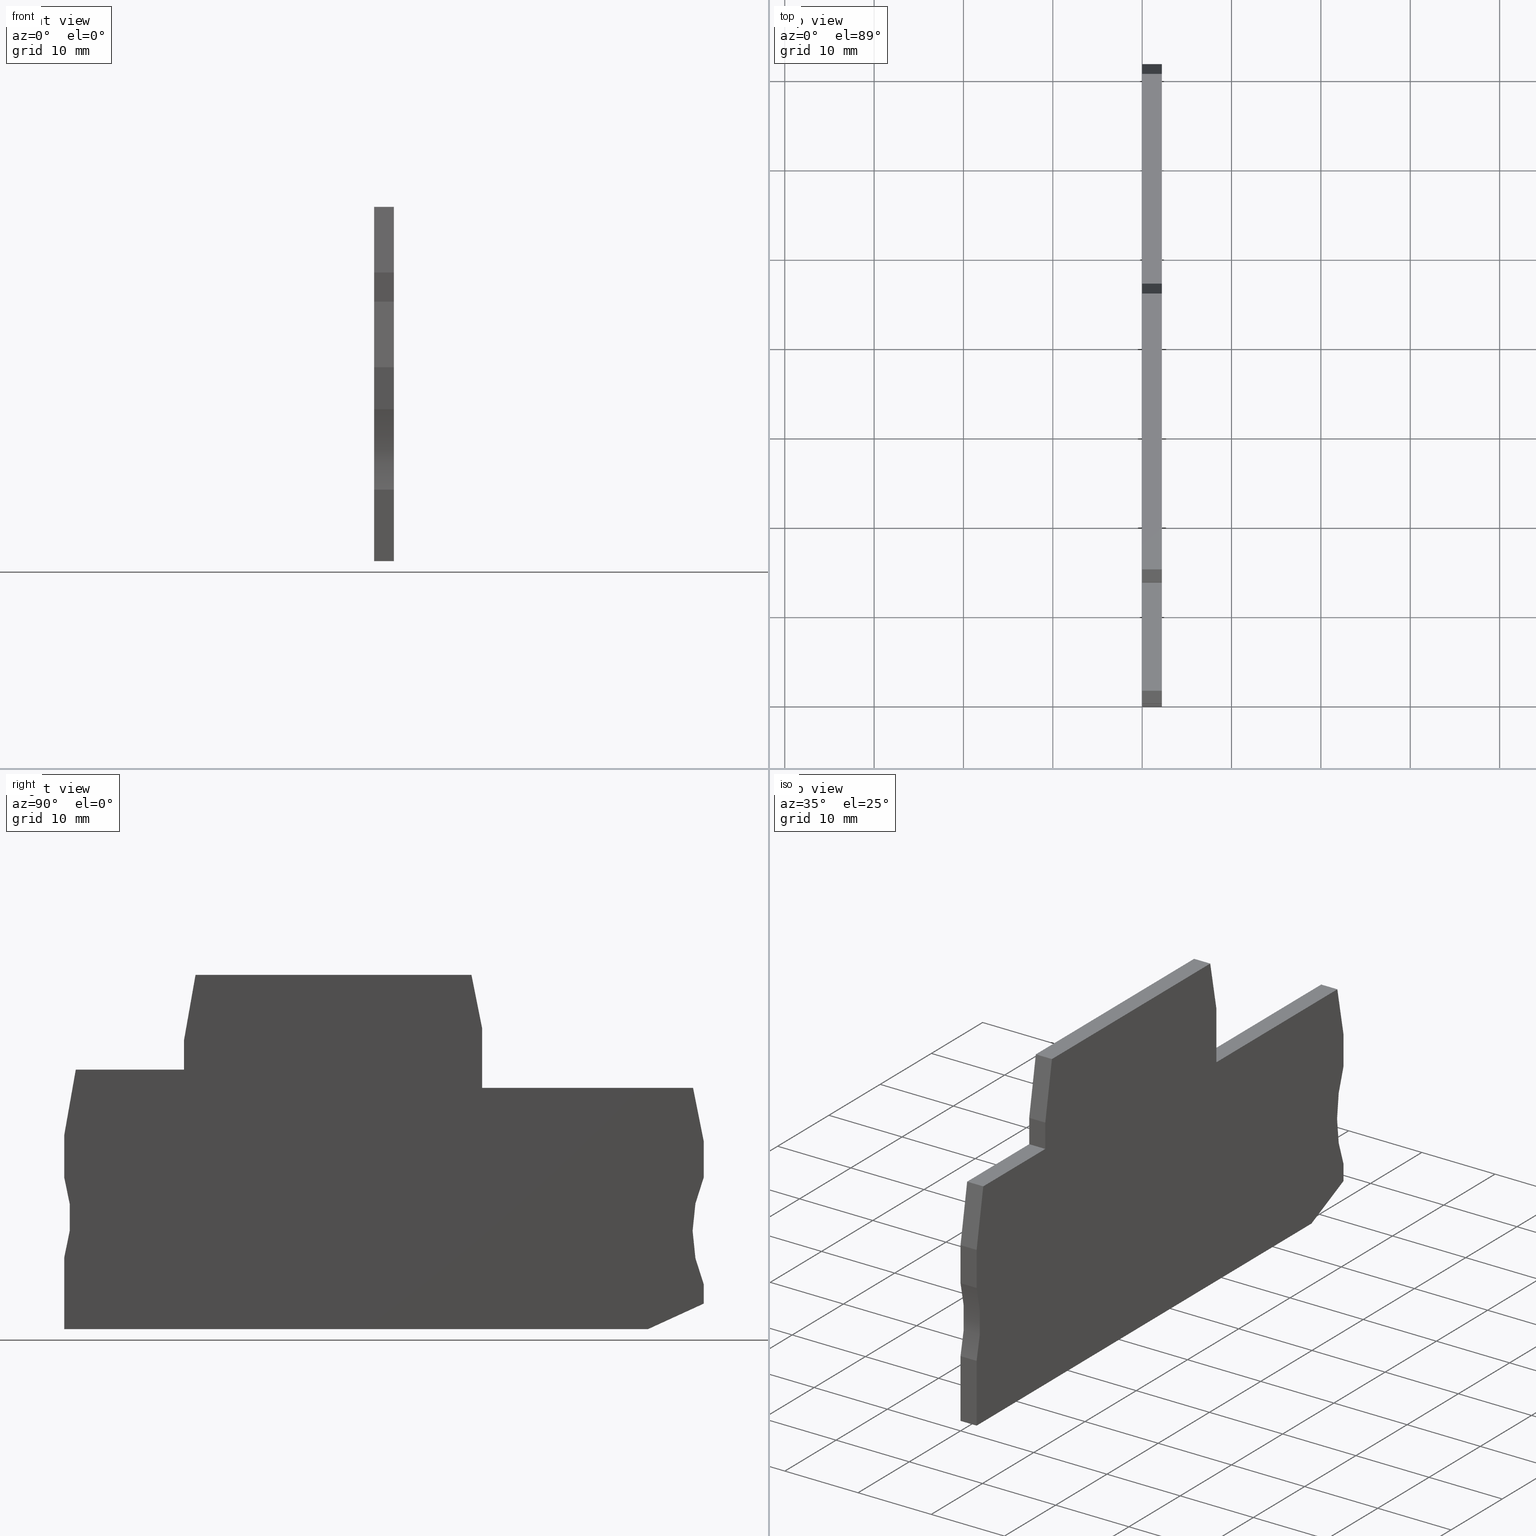
[diagram: canonical four-view strip — front | top / right | iso, engineering-drawing reading convention]
A machine part, canonical four-view strip (front | top / right | iso — engineering-drawing reading convention). The complete STEP part file that produces these views, byte-faithful:
ISO-10303-21;
HEADER;
FILE_DESCRIPTION(('Creo Elements/Direct Modeling STEP Export'),'2;1');
FILE_NAME(
'D:/temp/JobSpoolerServerData/JobServer Files/9b10378f-8272-4da4-959f-eb
54d220a2de/work/output/model.stp','2018-07-03T 8:57:46',(''),(''),
'Creo Elements/Direct Modeling STEP processor for AP214 (Solid Model)',
'Creo Elements/Direct Modeling 18.1I  14-Aug-2016 (C) Parametric Technol
ogy GmbH','');
FILE_SCHEMA(('AUTOMOTIVE_DESIGN { 1 0 10303 214 1 1 1 1 }'));
ENDSEC;
DATA;
#10=CARTESIAN_POINT('',(80.5866036945493,0.886529693613305,53.67));
#20=DIRECTION('',(0.,0.,-1.));
#30=DIRECTION('',(-1.,0.,0.));
#40=AXIS2_PLACEMENT_3D('',#10,#20,#30);
#50=PLANE('',#40);
#60=CARTESIAN_POINT('',(96.1109915311721,-11.94298,53.67));
#70=DIRECTION('',(0.196116135138246,-0.980580675690908,0.));
#80=VECTOR('',#70,1.);
#90=LINE('',#60,#80);
#100=CARTESIAN_POINT('',(93.4323955311731,1.44999999999059,53.67));
#110=VERTEX_POINT('',#100);
#120=CARTESIAN_POINT('',(94.6323955311728,-4.55000000000587,53.67));
#130=VERTEX_POINT('',#120);
#140=EDGE_CURVE('',#110,#130,#90,.T.);
#150=ORIENTED_EDGE('',*,*,#140,.T.);
#160=CARTESIAN_POINT('',(104.930098,1.44999999999058,53.67));
#170=DIRECTION('',(1.,0.,0.));
#180=VECTOR('',#170,1.);
#190=LINE('',#160,#180);
#200=CARTESIAN_POINT('',(62.5533991621023,1.44999999999059,53.67));
#210=VERTEX_POINT('',#200);
#220=EDGE_CURVE('',#210,#110,#190,.T.);
#230=ORIENTED_EDGE('',*,*,#220,.T.);
#240=CARTESIAN_POINT('',(60.1918554360151,-11.94298,53.67));
#250=DIRECTION('',(0.17364817766693,0.984807753012208,0.));
#260=VECTOR('',#250,1.);
#270=LINE('',#240,#260);
#280=CARTESIAN_POINT('',(61.2573958538972,-5.89999999999742,53.67));
#290=VERTEX_POINT('',#280);
#300=EDGE_CURVE('',#290,#210,#270,.T.);
#310=ORIENTED_EDGE('',*,*,#300,.T.);
#320=CARTESIAN_POINT('',(61.2573958538972,-11.94298,53.67));
#330=DIRECTION('',(0.,1.,0.));
#340=VECTOR('',#330,1.);
#350=LINE('',#320,#340);
#360=CARTESIAN_POINT('',(61.2573958538972,-9.15000000001019,53.67));
#370=VERTEX_POINT('',#360);
#380=EDGE_CURVE('',#370,#290,#350,.T.);
#390=ORIENTED_EDGE('',*,*,#380,.T.);
#400=CARTESIAN_POINT('',(104.930098,-9.15000000003588,53.67));
#410=DIRECTION('',(1.,-5.88205564955502E-13,0.));
#420=VECTOR('',#410,1.);
#430=LINE('',#400,#420);
#440=CARTESIAN_POINT('',(49.1533988533523,-9.15000000000308,53.67));
#450=VERTEX_POINT('',#440);
#460=EDGE_CURVE('',#450,#370,#430,.T.);
#470=ORIENTED_EDGE('',*,*,#460,.T.);
#480=CARTESIAN_POINT('',(48.6609211227738,-11.94298,53.67));
#490=DIRECTION('',(0.173648177666926,0.984807753012209,0.));
#500=VECTOR('',#490,1.);
#510=LINE('',#480,#500);
#520=CARTESIAN_POINT('',(47.8573958538972,-16.4999982489833,53.67));
#530=VERTEX_POINT('',#520);
#540=EDGE_CURVE('',#530,#450,#510,.T.);
#550=ORIENTED_EDGE('',*,*,#540,.T.);
#560=CARTESIAN_POINT('',(47.8573958538972,-11.94298,53.67));
#570=DIRECTION('',(0.,1.,0.));
#580=VECTOR('',#570,1.);
#590=LINE('',#560,#580);
#600=CARTESIAN_POINT('',(47.8573958538972,-21.2000000000006,53.67));
#610=VERTEX_POINT('',#600);
#620=EDGE_CURVE('',#610,#530,#590,.T.);
#630=ORIENTED_EDGE('',*,*,#620,.T.);
#640=CARTESIAN_POINT('',(33.5483078326437,-25.7000000000027,53.67));
#650=DIRECTION('',(0.,0.,-1.));
#660=DIRECTION('',(-1.,0.,0.));
#670=AXIS2_PLACEMENT_3D('',#640,#650,#660);
#680=CIRCLE('',#670,15.);
#690=CARTESIAN_POINT('',(47.8573958538972,-30.2000000000048,53.67));
#700=VERTEX_POINT('',#690);
#710=EDGE_CURVE('',#610,#700,#680,.T.);
#720=ORIENTED_EDGE('',*,*,#710,.F.);
#730=CARTESIAN_POINT('',(47.8573958538972,-11.94298,53.67));
#740=DIRECTION('',(4.65275954243089E-17,1.,0.));
#750=VECTOR('',#740,1.);
#760=LINE('',#730,#750);
#770=CARTESIAN_POINT('',(47.8573958538972,-38.2000000000016,53.67));
#780=VERTEX_POINT('',#770);
#790=EDGE_CURVE('',#780,#700,#760,.T.);
#800=ORIENTED_EDGE('',*,*,#790,.T.);
#810=CARTESIAN_POINT('',(104.930098,-38.2000000000016,53.67));
#820=DIRECTION('',(-1.,0.,0.));
#830=VECTOR('',#820,1.);
#840=LINE('',#810,#830);
#850=CARTESIAN_POINT('',(113.184773924186,-38.2000000000016,53.67));
#860=VERTEX_POINT('',#850);
#870=EDGE_CURVE('',#860,#780,#840,.T.);
#880=ORIENTED_EDGE('',*,*,#870,.T.);
#890=CARTESIAN_POINT('',(104.930098,-41.97947746349,53.67));
#900=DIRECTION('',(-0.909228114586486,-0.41629825323379,0.));
#910=VECTOR('',#900,1.);
#920=LINE('',#890,#910);
#930=CARTESIAN_POINT('',(119.432395853897,-35.3394702226237,53.67));
#940=VERTEX_POINT('',#930);
#950=EDGE_CURVE('',#940,#860,#920,.T.);
#960=ORIENTED_EDGE('',*,*,#950,.T.);
#970=CARTESIAN_POINT('',(119.432395853897,-11.94298,53.67));
#980=DIRECTION('',(1.79500271114492E-28,-1.,0.));
#990=VECTOR('',#980,1.);
#1000=LINE('',#970,#990);
#1010=CARTESIAN_POINT('',(119.432395853897,-33.2000000320001,53.67));
#1020=VERTEX_POINT('',#1010);
#1030=EDGE_CURVE('',#1020,#940,#1000,.T.);
#1040=ORIENTED_EDGE('',*,*,#1030,.T.);
#1050=CARTESIAN_POINT('',(133.1801229248,-27.2000000000027,53.67));
#1060=DIRECTION('',(0.,0.,1.));
#1070=DIRECTION('',(1.,0.,0.));
#1080=AXIS2_PLACEMENT_3D('',#1050,#1060,#1070);
#1090=CIRCLE('',#1080,15.);
#1100=CARTESIAN_POINT('',(119.432395853897,-21.1999999680051,53.67));
#1110=VERTEX_POINT('',#1100);
#1120=EDGE_CURVE('',#1110,#1020,#1090,.T.);
#1130=ORIENTED_EDGE('',*,*,#1120,.T.);
#1140=CARTESIAN_POINT('',(119.432395853897,-11.94298,53.67));
#1150=DIRECTION('',(1.79500271114492E-28,-1.,0.));
#1160=VECTOR('',#1150,1.);
#1170=LINE('',#1140,#1160);
#1180=CARTESIAN_POINT('',(119.432395853897,-17.1999999999988,53.67));
#1190=VERTEX_POINT('',#1180);
#1200=EDGE_CURVE('',#1190,#1110,#1170,.T.);
#1210=ORIENTED_EDGE('',*,*,#1200,.T.);
#1220=CARTESIAN_POINT('',(118.380991853897,-11.94298,53.67));
#1230=DIRECTION('',(0.196116135138252,-0.980580675690907,0.));
#1240=VECTOR('',#1230,1.);
#1250=LINE('',#1220,#1240);
#1260=CARTESIAN_POINT('',(118.232395853898,-11.2000000000031,53.67));
#1270=VERTEX_POINT('',#1260);
#1280=EDGE_CURVE('',#1270,#1190,#1250,.T.);
#1290=ORIENTED_EDGE('',*,*,#1280,.T.);
#1300=CARTESIAN_POINT('',(104.930098,-11.2000000000031,53.67));
#1310=DIRECTION('',(1.,0.,0.));
#1320=VECTOR('',#1310,1.);
#1330=LINE('',#1300,#1320);
#1340=CARTESIAN_POINT('',(94.6323955311728,-11.2000000000031,53.67));
#1350=VERTEX_POINT('',#1340);
#1360=EDGE_CURVE('',#1350,#1270,#1330,.T.);
#1370=ORIENTED_EDGE('',*,*,#1360,.T.);
#1380=CARTESIAN_POINT('',(94.6323955311728,-11.94298,53.67));
#1390=DIRECTION('',(1.79500271114492E-28,-1.,0.));
#1400=VECTOR('',#1390,1.);
#1410=LINE('',#1380,#1400);
#1420=EDGE_CURVE('',#130,#1350,#1410,.T.);
#1430=ORIENTED_EDGE('',*,*,#1420,.T.);
#1440=EDGE_LOOP('',(#1430,#1370,#1290,#1210,#1130,#1040,#960,#880,#800,
#720,#630,#550,#470,#390,#310,#230,#150));
#1450=FACE_OUTER_BOUND('',#1440,.T.);
#1460=ADVANCED_FACE('',(#1450),#50,.T.);
#1470=COLOUR_RGB('',0.560784339904785,0.588235318660736,
0.600000023841858);
#1480=FILL_AREA_STYLE_COLOUR('',#1470);
#1490=FILL_AREA_STYLE('',(#1480));
#1500=SURFACE_STYLE_FILL_AREA(#1490);
#1510=SURFACE_SIDE_STYLE('',(#1500));
#1520=SURFACE_STYLE_USAGE(.BOTH.,#1510);
#1530=PRESENTATION_STYLE_ASSIGNMENT((#1520));
#1540=CARTESIAN_POINT('',(117.284544833248,-37.6438478557534,55.87));
#1550=DIRECTION('',(0.,0.,-1.));
#1560=DIRECTION('',(-1.,0.,0.));
#1570=AXIS2_PLACEMENT_3D('',#1540,#1550,#1560);
#1580=PLANE('',#1570);
#1590=CARTESIAN_POINT('',(94.6323955311728,-11.94298,55.87));
#1600=DIRECTION('',(1.79500271114492E-28,-1.,0.));
#1610=VECTOR('',#1600,1.);
#1620=LINE('',#1590,#1610);
#1630=CARTESIAN_POINT('',(94.6323955311728,-4.55000000000587,55.87));
#1640=VERTEX_POINT('',#1630);
#1650=CARTESIAN_POINT('',(94.6323955311728,-11.2000000000031,55.87));
#1660=VERTEX_POINT('',#1650);
#1670=EDGE_CURVE('',#1640,#1660,#1620,.T.);
#1680=ORIENTED_EDGE('',*,*,#1670,.F.);
#1690=CARTESIAN_POINT('',(104.930098,-11.2000000000031,55.87));
#1700=DIRECTION('',(1.,0.,0.));
#1710=VECTOR('',#1700,1.);
#1720=LINE('',#1690,#1710);
#1730=CARTESIAN_POINT('',(118.232395853898,-11.2000000000031,55.87));
#1740=VERTEX_POINT('',#1730);
#1750=EDGE_CURVE('',#1660,#1740,#1720,.T.);
#1760=ORIENTED_EDGE('',*,*,#1750,.F.);
#1770=CARTESIAN_POINT('',(118.380991853897,-11.94298,55.87));
#1780=DIRECTION('',(0.196116135138252,-0.980580675690907,0.));
#1790=VECTOR('',#1780,1.);
#1800=LINE('',#1770,#1790);
#1810=CARTESIAN_POINT('',(119.432395853897,-17.1999999999988,55.87));
#1820=VERTEX_POINT('',#1810);
#1830=EDGE_CURVE('',#1740,#1820,#1800,.T.);
#1840=ORIENTED_EDGE('',*,*,#1830,.F.);
#1850=CARTESIAN_POINT('',(119.432395853897,-11.94298,55.87));
#1860=DIRECTION('',(1.79500271114492E-28,-1.,0.));
#1870=VECTOR('',#1860,1.);
#1880=LINE('',#1850,#1870);
#1890=CARTESIAN_POINT('',(119.432395853897,-21.1999999680051,55.87));
#1900=VERTEX_POINT('',#1890);
#1910=EDGE_CURVE('',#1820,#1900,#1880,.T.);
#1920=ORIENTED_EDGE('',*,*,#1910,.F.);
#1930=CARTESIAN_POINT('',(133.1801229248,-27.2000000000027,55.87));
#1940=DIRECTION('',(0.,0.,1.));
#1950=DIRECTION('',(1.,0.,0.));
#1960=AXIS2_PLACEMENT_3D('',#1930,#1940,#1950);
#1970=CIRCLE('',#1960,15.);
#1980=CARTESIAN_POINT('',(119.432395853897,-33.2000000320001,55.87));
#1990=VERTEX_POINT('',#1980);
#2000=EDGE_CURVE('',#1900,#1990,#1970,.T.);
#2010=ORIENTED_EDGE('',*,*,#2000,.F.);
#2020=CARTESIAN_POINT('',(119.432395853897,-11.94298,55.87));
#2030=DIRECTION('',(1.79500271114492E-28,-1.,0.));
#2040=VECTOR('',#2030,1.);
#2050=LINE('',#2020,#2040);
#2060=CARTESIAN_POINT('',(119.432395853897,-35.3394702226237,55.87));
#2070=VERTEX_POINT('',#2060);
#2080=EDGE_CURVE('',#1990,#2070,#2050,.T.);
#2090=ORIENTED_EDGE('',*,*,#2080,.F.);
#2100=CARTESIAN_POINT('',(104.930098,-41.97947746349,55.87));
#2110=DIRECTION('',(-0.909228114586486,-0.41629825323379,0.));
#2120=VECTOR('',#2110,1.);
#2130=LINE('',#2100,#2120);
#2140=CARTESIAN_POINT('',(113.184773924186,-38.2000000000016,55.87));
#2150=VERTEX_POINT('',#2140);
#2160=EDGE_CURVE('',#2070,#2150,#2130,.T.);
#2170=ORIENTED_EDGE('',*,*,#2160,.F.);
#2180=CARTESIAN_POINT('',(104.930098,-38.2000000000016,55.87));
#2190=DIRECTION('',(-1.,0.,0.));
#2200=VECTOR('',#2190,1.);
#2210=LINE('',#2180,#2200);
#2220=CARTESIAN_POINT('',(47.8573958538972,-38.2000000000016,55.87));
#2230=VERTEX_POINT('',#2220);
#2240=EDGE_CURVE('',#2150,#2230,#2210,.T.);
#2250=ORIENTED_EDGE('',*,*,#2240,.F.);
#2260=CARTESIAN_POINT('',(47.8573958538972,-11.94298,55.87));
#2270=DIRECTION('',(4.65275954243089E-17,1.,0.));
#2280=VECTOR('',#2270,1.);
#2290=LINE('',#2260,#2280);
#2300=CARTESIAN_POINT('',(47.8573958538972,-30.2000000000048,55.87));
#2310=VERTEX_POINT('',#2300);
#2320=EDGE_CURVE('',#2230,#2310,#2290,.T.);
#2330=ORIENTED_EDGE('',*,*,#2320,.F.);
#2340=CARTESIAN_POINT('',(33.5483078326437,-25.7000000000027,55.87));
#2350=DIRECTION('',(0.,0.,-1.));
#2360=DIRECTION('',(-1.,0.,0.));
#2370=AXIS2_PLACEMENT_3D('',#2340,#2350,#2360);
#2380=CIRCLE('',#2370,15.);
#2390=CARTESIAN_POINT('',(47.8573958538972,-21.2000000000006,55.87));
#2400=VERTEX_POINT('',#2390);
#2410=EDGE_CURVE('',#2400,#2310,#2380,.T.);
#2420=ORIENTED_EDGE('',*,*,#2410,.T.);
#2430=CARTESIAN_POINT('',(47.8573958538972,-11.94298,55.87));
#2440=DIRECTION('',(0.,1.,0.));
#2450=VECTOR('',#2440,1.);
#2460=LINE('',#2430,#2450);
#2470=CARTESIAN_POINT('',(47.8573958538972,-16.4999982489833,55.87));
#2480=VERTEX_POINT('',#2470);
#2490=EDGE_CURVE('',#2400,#2480,#2460,.T.);
#2500=ORIENTED_EDGE('',*,*,#2490,.F.);
#2510=CARTESIAN_POINT('',(48.6609211227738,-11.94298,55.87));
#2520=DIRECTION('',(0.173648177666926,0.984807753012209,0.));
#2530=VECTOR('',#2520,1.);
#2540=LINE('',#2510,#2530);
#2550=CARTESIAN_POINT('',(49.1533988533523,-9.15000000000308,55.87));
#2560=VERTEX_POINT('',#2550);
#2570=EDGE_CURVE('',#2480,#2560,#2540,.T.);
#2580=ORIENTED_EDGE('',*,*,#2570,.F.);
#2590=CARTESIAN_POINT('',(104.930098,-9.15000000003588,55.87));
#2600=DIRECTION('',(1.,-5.88205564955502E-13,0.));
#2610=VECTOR('',#2600,1.);
#2620=LINE('',#2590,#2610);
#2630=CARTESIAN_POINT('',(61.2573958538972,-9.15000000001019,55.87));
#2640=VERTEX_POINT('',#2630);
#2650=EDGE_CURVE('',#2560,#2640,#2620,.T.);
#2660=ORIENTED_EDGE('',*,*,#2650,.F.);
#2670=CARTESIAN_POINT('',(61.2573958538972,-11.94298,55.87));
#2680=DIRECTION('',(0.,1.,0.));
#2690=VECTOR('',#2680,1.);
#2700=LINE('',#2670,#2690);
#2710=CARTESIAN_POINT('',(61.2573958538972,-5.89999999999742,55.87));
#2720=VERTEX_POINT('',#2710);
#2730=EDGE_CURVE('',#2640,#2720,#2700,.T.);
#2740=ORIENTED_EDGE('',*,*,#2730,.F.);
#2750=CARTESIAN_POINT('',(60.1918554360151,-11.94298,55.87));
#2760=DIRECTION('',(0.17364817766693,0.984807753012208,0.));
#2770=VECTOR('',#2760,1.);
#2780=LINE('',#2750,#2770);
#2790=CARTESIAN_POINT('',(62.5533991621023,1.44999999999059,55.87));
#2800=VERTEX_POINT('',#2790);
#2810=EDGE_CURVE('',#2720,#2800,#2780,.T.);
#2820=ORIENTED_EDGE('',*,*,#2810,.F.);
#2830=CARTESIAN_POINT('',(104.930098,1.44999999999058,55.87));
#2840=DIRECTION('',(1.,0.,0.));
#2850=VECTOR('',#2840,1.);
#2860=LINE('',#2830,#2850);
#2870=CARTESIAN_POINT('',(93.4323955311731,1.4499999999906,55.87));
#2880=VERTEX_POINT('',#2870);
#2890=EDGE_CURVE('',#2800,#2880,#2860,.T.);
#2900=ORIENTED_EDGE('',*,*,#2890,.F.);
#2910=CARTESIAN_POINT('',(96.1109915311721,-11.94298,55.87));
#2920=DIRECTION('',(0.196116135138246,-0.980580675690908,0.));
#2930=VECTOR('',#2920,1.);
#2940=LINE('',#2910,#2930);
#2950=EDGE_CURVE('',#2880,#1640,#2940,.T.);
#2960=ORIENTED_EDGE('',*,*,#2950,.F.);
#2970=EDGE_LOOP('',(#2960,#2900,#2820,#2740,#2660,#2580,#2500,#2420,
#2330,#2250,#2170,#2090,#2010,#1920,#1840,#1760,#1680));
#2980=FACE_OUTER_BOUND('',#2970,.T.);
#2990=ADVANCED_FACE('',(#2980),#1580,.F.);
#3000=COLOUR_RGB('',0.560784339904785,0.588235318660736,
0.600000023841858);
#3010=FILL_AREA_STYLE_COLOUR('',#3000);
#3020=FILL_AREA_STYLE('',(#3010));
#3030=SURFACE_STYLE_FILL_AREA(#3020);
#3040=SURFACE_SIDE_STYLE('',(#3030));
#3050=SURFACE_STYLE_USAGE(.BOTH.,#3040);
#3060=PRESENTATION_STYLE_ASSIGNMENT((#3050));
#3070=CARTESIAN_POINT('',(33.5483078326437,-25.7000000000027,53.67));
#3080=DIRECTION('',(0.,0.,-1.));
#3090=DIRECTION('',(-1.,0.,0.));
#3100=AXIS2_PLACEMENT_3D('',#3070,#3080,#3090);
#3110=CYLINDRICAL_SURFACE('',#3100,15.);
#3120=ORIENTED_EDGE('',*,*,#710,.T.);
#3130=CARTESIAN_POINT('',(47.8573958538972,-21.2000000000006,53.67));
#3140=DIRECTION('',(0.,0.,-1.));
#3150=VECTOR('',#3140,1.);
#3160=LINE('',#3130,#3150);
#3170=EDGE_CURVE('',#2400,#610,#3160,.T.);
#3180=ORIENTED_EDGE('',*,*,#3170,.T.);
#3190=ORIENTED_EDGE('',*,*,#2410,.F.);
#3200=CARTESIAN_POINT('',(47.8573958538972,-30.2000000000048,53.67));
#3210=DIRECTION('',(0.,0.,-1.));
#3220=VECTOR('',#3210,1.);
#3230=LINE('',#3200,#3220);
#3240=EDGE_CURVE('',#2310,#700,#3230,.T.);
#3250=ORIENTED_EDGE('',*,*,#3240,.F.);
#3260=EDGE_LOOP('',(#3250,#3190,#3180,#3120));
#3270=FACE_OUTER_BOUND('',#3260,.T.);
#3280=ADVANCED_FACE('',(#3270),#3110,.F.);
#3290=COLOUR_RGB('',0.560784339904785,0.588235318660736,
0.600000023841858);
#3300=FILL_AREA_STYLE_COLOUR('',#3290);
#3310=FILL_AREA_STYLE('',(#3300));
#3320=SURFACE_STYLE_FILL_AREA(#3310);
#3330=SURFACE_SIDE_STYLE('',(#3320));
#3340=SURFACE_STYLE_USAGE(.BOTH.,#3330);
#3350=PRESENTATION_STYLE_ASSIGNMENT((#3340));
#3360=CARTESIAN_POINT('',(61.2649919773911,-5.85692024292695,53.67));
#3370=DIRECTION('',(-0.984807753012208,0.17364817766693,0.));
#3380=DIRECTION('',(-0.17364817766693,-0.984807753012208,0.));
#3390=AXIS2_PLACEMENT_3D('',#3360,#3370,#3380);
#3400=PLANE('',#3390);
#3410=ORIENTED_EDGE('',*,*,#300,.F.);
#3420=CARTESIAN_POINT('',(62.5533991621023,1.44999999999058,53.67));
#3430=DIRECTION('',(0.,0.,-1.));
#3440=VECTOR('',#3430,1.);
#3450=LINE('',#3420,#3440);
#3460=EDGE_CURVE('',#2800,#210,#3450,.T.);
#3470=ORIENTED_EDGE('',*,*,#3460,.T.);
#3480=ORIENTED_EDGE('',*,*,#2810,.T.);
#3490=CARTESIAN_POINT('',(61.2573958538972,-5.89999999999742,53.67));
#3500=DIRECTION('',(0.,0.,-1.));
#3510=VECTOR('',#3500,1.);
#3520=LINE('',#3490,#3510);
#3530=EDGE_CURVE('',#2720,#290,#3520,.T.);
#3540=ORIENTED_EDGE('',*,*,#3530,.F.);
#3550=EDGE_LOOP('',(#3540,#3480,#3470,#3410));
#3560=FACE_OUTER_BOUND('',#3550,.T.);
#3570=ADVANCED_FACE('',(#3560),#3400,.T.);
#3580=COLOUR_RGB('',0.560784339904785,0.588235318660736,
0.600000023841858);
#3590=FILL_AREA_STYLE_COLOUR('',#3580);
#3600=FILL_AREA_STYLE('',(#3590));
#3610=SURFACE_STYLE_FILL_AREA(#3600);
#3620=SURFACE_SIDE_STYLE('',(#3610));
#3630=SURFACE_STYLE_USAGE(.BOTH.,#3620);
#3640=PRESENTATION_STYLE_ASSIGNMENT((#3630));
#3650=CARTESIAN_POINT('',(47.8573958538972,-34.2000000000016,53.67));
#3660=DIRECTION('',(-1.,4.65275954243089E-17,0.));
#3670=DIRECTION('',(-4.65275954243089E-17,-1.,0.));
#3680=AXIS2_PLACEMENT_3D('',#3650,#3660,#3670);
#3690=PLANE('',#3680);
#3700=ORIENTED_EDGE('',*,*,#3240,.T.);
#3710=ORIENTED_EDGE('',*,*,#2320,.T.);
#3720=CARTESIAN_POINT('',(47.8573958538972,-38.2000000000016,53.67));
#3730=DIRECTION('',(0.,0.,-1.));
#3740=VECTOR('',#3730,1.);
#3750=LINE('',#3720,#3740);
#3760=EDGE_CURVE('',#2230,#780,#3750,.T.);
#3770=ORIENTED_EDGE('',*,*,#3760,.F.);
#3780=ORIENTED_EDGE('',*,*,#790,.F.);
#3790=EDGE_LOOP('',(#3780,#3770,#3710,#3700));
#3800=FACE_OUTER_BOUND('',#3790,.T.);
#3810=ADVANCED_FACE('',(#3800),#3690,.T.);
#3820=COLOUR_RGB('',0.560784339904785,0.588235318660736,
0.600000023841858);
#3830=FILL_AREA_STYLE_COLOUR('',#3820);
#3840=FILL_AREA_STYLE('',(#3830));
#3850=SURFACE_STYLE_FILL_AREA(#3840);
#3860=SURFACE_SIDE_STYLE('',(#3850));
#3870=SURFACE_STYLE_USAGE(.BOTH.,#3860);
#3880=PRESENTATION_STYLE_ASSIGNMENT((#3870));
#3890=CARTESIAN_POINT('',(47.8649919773911,-16.4569184919128,53.67));
#3900=DIRECTION('',(-0.984807753012209,0.173648177666926,0.));
#3910=DIRECTION('',(-0.173648177666926,-0.984807753012209,0.));
#3920=AXIS2_PLACEMENT_3D('',#3890,#3900,#3910);
#3930=PLANE('',#3920);
#3940=CARTESIAN_POINT('',(49.1533988533523,-9.15000000000308,53.67));
#3950=DIRECTION('',(0.,0.,-1.));
#3960=VECTOR('',#3950,1.);
#3970=LINE('',#3940,#3960);
#3980=EDGE_CURVE('',#2560,#450,#3970,.T.);
#3990=ORIENTED_EDGE('',*,*,#3980,.T.);
#4000=ORIENTED_EDGE('',*,*,#2570,.T.);
#4010=CARTESIAN_POINT('',(47.8573958538972,-16.4999982489833,53.67));
#4020=DIRECTION('',(0.,0.,-1.));
#4030=VECTOR('',#4020,1.);
#4040=LINE('',#4010,#4030);
#4050=EDGE_CURVE('',#2480,#530,#4040,.T.);
#4060=ORIENTED_EDGE('',*,*,#4050,.F.);
#4070=ORIENTED_EDGE('',*,*,#540,.F.);
#4080=EDGE_LOOP('',(#4070,#4060,#4000,#3990));
#4090=FACE_OUTER_BOUND('',#4080,.T.);
#4100=ADVANCED_FACE('',(#4090),#3930,.T.);
#4110=COLOUR_RGB('',0.560784339904785,0.588235318660736,
0.600000023841858);
#4120=FILL_AREA_STYLE_COLOUR('',#4110);
#4130=FILL_AREA_STYLE('',(#4120));
#4140=SURFACE_STYLE_FILL_AREA(#4130);
#4150=SURFACE_SIDE_STYLE('',(#4140));
#4160=SURFACE_STYLE_USAGE(.BOTH.,#4150);
#4170=PRESENTATION_STYLE_ASSIGNMENT((#4160));
#4180=CARTESIAN_POINT('',(112.748683286244,-38.2000000000016,53.67));
#4190=DIRECTION('',(0.,-1.,0.));
#4200=DIRECTION('',(1.,0.,0.));
#4210=AXIS2_PLACEMENT_3D('',#4180,#4190,#4200);
#4220=PLANE('',#4210);
#4230=ORIENTED_EDGE('',*,*,#870,.F.);
#4240=ORIENTED_EDGE('',*,*,#3760,.T.);
#4250=ORIENTED_EDGE('',*,*,#2240,.T.);
#4260=CARTESIAN_POINT('',(113.184773924186,-38.2000000000016,53.67));
#4270=DIRECTION('',(0.,0.,-1.));
#4280=VECTOR('',#4270,1.);
#4290=LINE('',#4260,#4280);
#4300=EDGE_CURVE('',#2150,#860,#4290,.T.);
#4310=ORIENTED_EDGE('',*,*,#4300,.F.);
#4320=EDGE_LOOP('',(#4310,#4250,#4240,#4230));
#4330=FACE_OUTER_BOUND('',#4320,.T.);
#4340=ADVANCED_FACE('',(#4330),#4220,.T.);
#4350=COLOUR_RGB('',0.560784339904785,0.588235318660736,
0.600000023841858);
#4360=FILL_AREA_STYLE_COLOUR('',#4350);
#4370=FILL_AREA_STYLE('',(#4360));
#4380=SURFACE_STYLE_FILL_AREA(#4370);
#4390=SURFACE_SIDE_STYLE('',(#4380));
#4400=SURFACE_STYLE_USAGE(.BOTH.,#4390);
#4410=PRESENTATION_STYLE_ASSIGNMENT((#4400));
#4420=CARTESIAN_POINT('',(93.5127839176593,1.04805806755972,53.67));
#4430=DIRECTION('',(0.980580675690908,0.196116135138246,-0.));
#4440=DIRECTION('',(-0.196116135138246,0.980580675690908,0.));
#4450=AXIS2_PLACEMENT_3D('',#4420,#4430,#4440);
#4460=PLANE('',#4450);
#4470=CARTESIAN_POINT('',(94.6323955311728,-4.55000000000587,53.67));
#4480=DIRECTION('',(0.,0.,-1.));
#4490=VECTOR('',#4480,1.);
#4500=LINE('',#4470,#4490);
#4510=EDGE_CURVE('',#1640,#130,#4500,.T.);
#4520=ORIENTED_EDGE('',*,*,#4510,.T.);
#4530=ORIENTED_EDGE('',*,*,#2950,.T.);
#4540=CARTESIAN_POINT('',(93.4323955311731,1.44999999999058,53.67));
#4550=DIRECTION('',(0.,0.,-1.));
#4560=VECTOR('',#4550,1.);
#4570=LINE('',#4540,#4560);
#4580=EDGE_CURVE('',#2880,#110,#4570,.T.);
#4590=ORIENTED_EDGE('',*,*,#4580,.F.);
#4600=ORIENTED_EDGE('',*,*,#140,.F.);
#4610=EDGE_LOOP('',(#4600,#4590,#4530,#4520));
#4620=FACE_OUTER_BOUND('',#4610,.T.);
#4630=ADVANCED_FACE('',(#4620),#4460,.T.);
#4640=COLOUR_RGB('',0.560784339904785,0.588235318660736,
0.600000023841858);
#4650=FILL_AREA_STYLE_COLOUR('',#4640);
#4660=FILL_AREA_STYLE('',(#4650));
#4670=SURFACE_STYLE_FILL_AREA(#4660);
#4680=SURFACE_SIDE_STYLE('',(#4670));
#4690=SURFACE_STYLE_USAGE(.BOTH.,#4680);
#4700=PRESENTATION_STYLE_ASSIGNMENT((#4690));
#4710=CARTESIAN_POINT('',(118.264992360365,-35.8739763904159,53.67));
#4720=DIRECTION('',(0.41629825323379,-0.909228114586486,0.));
#4730=DIRECTION('',(0.909228114586486,0.41629825323379,0.));
#4740=AXIS2_PLACEMENT_3D('',#4710,#4720,#4730);
#4750=PLANE('',#4740);
#4760=ORIENTED_EDGE('',*,*,#4300,.T.);
#4770=ORIENTED_EDGE('',*,*,#2160,.T.);
#4780=CARTESIAN_POINT('',(119.432395853897,-35.3394702226237,53.67));
#4790=DIRECTION('',(0.,0.,-1.));
#4800=VECTOR('',#4790,1.);
#4810=LINE('',#4780,#4800);
#4820=EDGE_CURVE('',#2070,#940,#4810,.T.);
#4830=ORIENTED_EDGE('',*,*,#4820,.F.);
#4840=ORIENTED_EDGE('',*,*,#950,.F.);
#4850=EDGE_LOOP('',(#4840,#4830,#4770,#4760));
#4860=FACE_OUTER_BOUND('',#4850,.T.);
#4870=ADVANCED_FACE('',(#4860),#4750,.T.);
#4880=COLOUR_RGB('',0.560784339904785,0.588235318660736,
0.600000023841858);
#4890=FILL_AREA_STYLE_COLOUR('',#4880);
#4900=FILL_AREA_STYLE('',(#4890));
#4910=SURFACE_STYLE_FILL_AREA(#4900);
#4920=SURFACE_SIDE_STYLE('',(#4910));
#4930=SURFACE_STYLE_USAGE(.BOTH.,#4920);
#4940=PRESENTATION_STYLE_ASSIGNMENT((#4930));
#4950=CARTESIAN_POINT('',(49.5729486689412,-9.15000000000332,53.67));
#4960=DIRECTION('',(5.88205564955502E-13,1.,-0.));
#4970=DIRECTION('',(-1.,5.88205564955502E-13,0.));
#4980=AXIS2_PLACEMENT_3D('',#4950,#4960,#4970);
#4990=PLANE('',#4980);
#5000=ORIENTED_EDGE('',*,*,#460,.F.);
#5010=CARTESIAN_POINT('',(61.2573958538972,-9.15000000001019,53.67));
#5020=DIRECTION('',(0.,0.,1.));
#5030=VECTOR('',#5020,1.);
#5040=LINE('',#5010,#5030);
#5050=EDGE_CURVE('',#370,#2640,#5040,.T.);
#5060=ORIENTED_EDGE('',*,*,#5050,.F.);
#5070=ORIENTED_EDGE('',*,*,#2650,.T.);
#5080=ORIENTED_EDGE('',*,*,#3980,.F.);
#5090=EDGE_LOOP('',(#5080,#5070,#5060,#5000));
#5100=FACE_OUTER_BOUND('',#5090,.T.);
#5110=ADVANCED_FACE('',(#5100),#4990,.T.);
#5120=COLOUR_RGB('',0.560784339904785,0.588235318660736,
0.600000023841858);
#5130=FILL_AREA_STYLE_COLOUR('',#5120);
#5140=FILL_AREA_STYLE('',(#5130));
#5150=SURFACE_STYLE_FILL_AREA(#5140);
#5160=SURFACE_SIDE_STYLE('',(#5150));
#5170=SURFACE_STYLE_USAGE(.BOTH.,#5160);
#5180=PRESENTATION_STYLE_ASSIGNMENT((#5170));
#5190=CARTESIAN_POINT('',(119.432395853897,-33.6038341718375,53.67));
#5200=DIRECTION('',(1.,1.79500271114492E-28,-0.));
#5210=DIRECTION('',(-1.79500271114492E-28,1.,0.));
#5220=AXIS2_PLACEMENT_3D('',#5190,#5200,#5210);
#5230=PLANE('',#5220);
#5240=ORIENTED_EDGE('',*,*,#1030,.F.);
#5250=ORIENTED_EDGE('',*,*,#4820,.T.);
#5260=ORIENTED_EDGE('',*,*,#2080,.T.);
#5270=CARTESIAN_POINT('',(119.432395853897,-33.2000000320001,53.67));
#5280=DIRECTION('',(0.,0.,-1.));
#5290=VECTOR('',#5280,1.);
#5300=LINE('',#5270,#5290);
#5310=EDGE_CURVE('',#1990,#1020,#5300,.T.);
#5320=ORIENTED_EDGE('',*,*,#5310,.F.);
#5330=EDGE_LOOP('',(#5320,#5260,#5250,#5240));
#5340=FACE_OUTER_BOUND('',#5330,.T.);
#5350=ADVANCED_FACE('',(#5340),#5230,.T.);
#5360=COLOUR_RGB('',0.560784339904785,0.588235318660736,
0.600000023841858);
#5370=FILL_AREA_STYLE_COLOUR('',#5360);
#5380=FILL_AREA_STYLE('',(#5370));
#5390=SURFACE_STYLE_FILL_AREA(#5380);
#5400=SURFACE_SIDE_STYLE('',(#5390));
#5410=SURFACE_STYLE_USAGE(.BOTH.,#5400);
#5420=PRESENTATION_STYLE_ASSIGNMENT((#5410));
#5430=CARTESIAN_POINT('',(94.6323955311728,-5.04509756796998,53.67));
#5440=DIRECTION('',(1.,1.79500271114492E-28,-0.));
#5450=DIRECTION('',(-1.79500271114492E-28,1.,0.));
#5460=AXIS2_PLACEMENT_3D('',#5430,#5440,#5450);
#5470=PLANE('',#5460);
#5480=ORIENTED_EDGE('',*,*,#1420,.F.);
#5490=CARTESIAN_POINT('',(94.6323955311728,-11.2000000000031,53.67));
#5500=DIRECTION('',(2.46209646432132E-14,0.,-1.));
#5510=VECTOR('',#5500,1.);
#5520=LINE('',#5490,#5510);
#5530=EDGE_CURVE('',#1660,#1350,#5520,.T.);
#5540=ORIENTED_EDGE('',*,*,#5530,.T.);
#5550=ORIENTED_EDGE('',*,*,#1670,.T.);
#5560=ORIENTED_EDGE('',*,*,#4510,.F.);
#5570=EDGE_LOOP('',(#5560,#5550,#5540,#5480));
#5580=FACE_OUTER_BOUND('',#5570,.T.);
#5590=ADVANCED_FACE('',(#5580),#5470,.T.);
#5600=COLOUR_RGB('',0.560784339904785,0.588235318660736,
0.600000023841858);
#5610=FILL_AREA_STYLE_COLOUR('',#5600);
#5620=FILL_AREA_STYLE('',(#5610));
#5630=SURFACE_STYLE_FILL_AREA(#5620);
#5640=SURFACE_SIDE_STYLE('',(#5630));
#5650=SURFACE_STYLE_USAGE(.BOTH.,#5640);
#5660=PRESENTATION_STYLE_ASSIGNMENT((#5650));
#5670=CARTESIAN_POINT('',(133.1801229248,-27.2000000000027,53.67));
#5680=DIRECTION('',(0.,0.,1.));
#5690=DIRECTION('',(1.,0.,0.));
#5700=AXIS2_PLACEMENT_3D('',#5670,#5680,#5690);
#5710=CYLINDRICAL_SURFACE('',#5700,15.);
#5720=ORIENTED_EDGE('',*,*,#5310,.T.);
#5730=ORIENTED_EDGE('',*,*,#2000,.T.);
#5740=CARTESIAN_POINT('',(119.432395853897,-21.1999999680051,53.67));
#5750=DIRECTION('',(0.,0.,-1.));
#5760=VECTOR('',#5750,1.);
#5770=LINE('',#5740,#5760);
#5780=EDGE_CURVE('',#1900,#1110,#5770,.T.);
#5790=ORIENTED_EDGE('',*,*,#5780,.F.);
#5800=ORIENTED_EDGE('',*,*,#1120,.F.);
#5810=EDGE_LOOP('',(#5800,#5790,#5730,#5720));
#5820=FACE_OUTER_BOUND('',#5810,.T.);
#5830=ADVANCED_FACE('',(#5820),#5710,.F.);
#5840=COLOUR_RGB('',0.560784339904785,0.588235318660736,
0.600000023841858);
#5850=FILL_AREA_STYLE_COLOUR('',#5840);
#5860=FILL_AREA_STYLE('',(#5850));
#5870=SURFACE_STYLE_FILL_AREA(#5860);
#5880=SURFACE_SIDE_STYLE('',(#5870));
#5890=SURFACE_STYLE_USAGE(.BOTH.,#5880);
#5900=PRESENTATION_STYLE_ASSIGNMENT((#5890));
#5910=CARTESIAN_POINT('',(47.8573958538972,-20.9027457942091,53.67));
#5920=DIRECTION('',(-1.,0.,0.));
#5930=DIRECTION('',(0.,-1.,0.));
#5940=AXIS2_PLACEMENT_3D('',#5910,#5920,#5930);
#5950=PLANE('',#5940);
#5960=ORIENTED_EDGE('',*,*,#620,.F.);
#5970=ORIENTED_EDGE('',*,*,#4050,.T.);
#5980=ORIENTED_EDGE('',*,*,#2490,.T.);
#5990=ORIENTED_EDGE('',*,*,#3170,.F.);
#6000=EDGE_LOOP('',(#5990,#5980,#5970,#5960));
#6010=FACE_OUTER_BOUND('',#6000,.T.);
#6020=ADVANCED_FACE('',(#6010),#5950,.T.);
#6030=COLOUR_RGB('',0.560784339904785,0.588235318660736,
0.600000023841858);
#6040=FILL_AREA_STYLE_COLOUR('',#6030);
#6050=FILL_AREA_STYLE('',(#6040));
#6060=SURFACE_STYLE_FILL_AREA(#6050);
#6070=SURFACE_SIDE_STYLE('',(#6060));
#6080=SURFACE_STYLE_USAGE(.BOTH.,#6070);
#6090=PRESENTATION_STYLE_ASSIGNMENT((#6080));
#6100=CARTESIAN_POINT('',(119.432395853897,-17.6950975679629,53.67));
#6110=DIRECTION('',(1.,1.79500271114492E-28,-0.));
#6120=DIRECTION('',(-1.79500271114492E-28,1.,0.));
#6130=AXIS2_PLACEMENT_3D('',#6100,#6110,#6120);
#6140=PLANE('',#6130);
#6150=ORIENTED_EDGE('',*,*,#5780,.T.);
#6160=ORIENTED_EDGE('',*,*,#1910,.T.);
#6170=CARTESIAN_POINT('',(119.432395853897,-17.1999999999988,53.67));
#6180=DIRECTION('',(0.,0.,-1.));
#6190=VECTOR('',#6180,1.);
#6200=LINE('',#6170,#6190);
#6210=EDGE_CURVE('',#1820,#1190,#6200,.T.);
#6220=ORIENTED_EDGE('',*,*,#6210,.F.);
#6230=ORIENTED_EDGE('',*,*,#1200,.F.);
#6240=EDGE_LOOP('',(#6230,#6220,#6160,#6150));
#6250=FACE_OUTER_BOUND('',#6240,.T.);
#6260=ADVANCED_FACE('',(#6250),#6140,.T.);
#6270=COLOUR_RGB('',0.560784339904785,0.588235318660736,
0.600000023841858);
#6280=FILL_AREA_STYLE_COLOUR('',#6270);
#6290=FILL_AREA_STYLE('',(#6280));
#6300=SURFACE_STYLE_FILL_AREA(#6290);
#6310=SURFACE_SIDE_STYLE('',(#6300));
#6320=SURFACE_STYLE_USAGE(.BOTH.,#6310);
#6330=PRESENTATION_STYLE_ASSIGNMENT((#6320));
#6340=CARTESIAN_POINT('',(61.2573958538972,-9.15000000001019,53.67));
#6350=DIRECTION('',(-1.,0.,0.));
#6360=DIRECTION('',(0.,-1.,0.));
#6370=AXIS2_PLACEMENT_3D('',#6340,#6350,#6360);
#6380=PLANE('',#6370);
#6390=ORIENTED_EDGE('',*,*,#3530,.T.);
#6400=ORIENTED_EDGE('',*,*,#2730,.T.);
#6410=ORIENTED_EDGE('',*,*,#5050,.T.);
#6420=ORIENTED_EDGE('',*,*,#380,.F.);
#6430=EDGE_LOOP('',(#6420,#6410,#6400,#6390));
#6440=FACE_OUTER_BOUND('',#6430,.T.);
#6450=ADVANCED_FACE('',(#6440),#6380,.T.);
#6460=COLOUR_RGB('',0.560784339904785,0.588235318660736,
0.600000023841858);
#6470=FILL_AREA_STYLE_COLOUR('',#6460);
#6480=FILL_AREA_STYLE('',(#6470));
#6490=SURFACE_STYLE_FILL_AREA(#6480);
#6500=SURFACE_SIDE_STYLE('',(#6490));
#6510=SURFACE_STYLE_USAGE(.BOTH.,#6500);
#6520=PRESENTATION_STYLE_ASSIGNMENT((#6510));
#6530=CARTESIAN_POINT('',(118.312784240384,-11.6019419324339,53.67));
#6540=DIRECTION('',(0.980580675690907,0.196116135138252,-0.));
#6550=DIRECTION('',(-0.196116135138252,0.980580675690907,0.));
#6560=AXIS2_PLACEMENT_3D('',#6530,#6540,#6550);
#6570=PLANE('',#6560);
#6580=ORIENTED_EDGE('',*,*,#1280,.F.);
#6590=ORIENTED_EDGE('',*,*,#6210,.T.);
#6600=ORIENTED_EDGE('',*,*,#1830,.T.);
#6610=CARTESIAN_POINT('',(118.232395853898,-11.2000000000031,53.67));
#6620=DIRECTION('',(0.,0.,-1.));
#6630=VECTOR('',#6620,1.);
#6640=LINE('',#6610,#6630);
#6650=EDGE_CURVE('',#1740,#1270,#6640,.T.);
#6660=ORIENTED_EDGE('',*,*,#6650,.F.);
#6670=EDGE_LOOP('',(#6660,#6600,#6590,#6580));
#6680=FACE_OUTER_BOUND('',#6670,.T.);
#6690=ADVANCED_FACE('',(#6680),#6570,.T.);
#6700=COLOUR_RGB('',0.560784339904785,0.588235318660736,
0.600000023841858);
#6710=FILL_AREA_STYLE_COLOUR('',#6700);
#6720=FILL_AREA_STYLE('',(#6710));
#6730=SURFACE_STYLE_FILL_AREA(#6720);
#6740=SURFACE_SIDE_STYLE('',(#6730));
#6750=SURFACE_STYLE_USAGE(.BOTH.,#6740);
#6760=PRESENTATION_STYLE_ASSIGNMENT((#6750));
#6770=CARTESIAN_POINT('',(62.9729489776909,1.44999999999058,53.67));
#6780=DIRECTION('',(0.,1.,-0.));
#6790=DIRECTION('',(-1.,0.,0.));
#6800=AXIS2_PLACEMENT_3D('',#6770,#6780,#6790);
#6810=PLANE('',#6800);
#6820=ORIENTED_EDGE('',*,*,#4580,.T.);
#6830=ORIENTED_EDGE('',*,*,#2890,.T.);
#6840=ORIENTED_EDGE('',*,*,#3460,.F.);
#6850=ORIENTED_EDGE('',*,*,#220,.F.);
#6860=EDGE_LOOP('',(#6850,#6840,#6830,#6820));
#6870=FACE_OUTER_BOUND('',#6860,.T.);
#6880=ADVANCED_FACE('',(#6870),#6810,.T.);
#6890=COLOUR_RGB('',0.560784339904785,0.588235318660736,
0.600000023841858);
#6900=FILL_AREA_STYLE_COLOUR('',#6890);
#6910=FILL_AREA_STYLE('',(#6900));
#6920=SURFACE_STYLE_FILL_AREA(#6910);
#6930=SURFACE_SIDE_STYLE('',(#6920));
#6940=SURFACE_STYLE_USAGE(.BOTH.,#6930);
#6950=PRESENTATION_STYLE_ASSIGNMENT((#6940));
#6960=CARTESIAN_POINT('',(94.6323955311728,-11.2000000000031,53.67));
#6970=DIRECTION('',(0.,1.,-0.));
#6980=DIRECTION('',(-1.,0.,0.));
#6990=AXIS2_PLACEMENT_3D('',#6960,#6970,#6980);
#7000=PLANE('',#6990);
#7010=ORIENTED_EDGE('',*,*,#6650,.T.);
#7020=ORIENTED_EDGE('',*,*,#1750,.T.);
#7030=ORIENTED_EDGE('',*,*,#5530,.F.);
#7040=ORIENTED_EDGE('',*,*,#1360,.F.);
#7050=EDGE_LOOP('',(#7040,#7030,#7020,#7010));
#7060=FACE_OUTER_BOUND('',#7050,.T.);
#7070=ADVANCED_FACE('',(#7060),#7000,.T.);
#7080=COLOUR_RGB('',0.560784339904785,0.588235318660736,
0.600000023841858);
#7090=FILL_AREA_STYLE_COLOUR('',#7080);
#7100=FILL_AREA_STYLE('',(#7090));
#7110=SURFACE_STYLE_FILL_AREA(#7100);
#7120=SURFACE_SIDE_STYLE('',(#7110));
#7130=SURFACE_STYLE_USAGE(.BOTH.,#7120);
#7140=PRESENTATION_STYLE_ASSIGNMENT((#7130));
#7150=CLOSED_SHELL('',(#3280,#3570,#3810,#4100,#4340,#4630,#4870,#5110,
#5350,#5590,#5830,#6020,#6260,#6450,#6690,#6880,#7070,#2990,#1460));
#7160=MANIFOLD_SOLID_BREP('',#7150);
#7170=CARTESIAN_POINT('',(0.,0.,0.));
#7180=DIRECTION('',(0.,0.,1.));
#7190=DIRECTION('',(1.,0.,0.));
#7200=AXIS2_PLACEMENT_3D('',#7170,#7180,#7190);
#7210=APPLICATION_CONTEXT(' ');
#7220=APPLICATION_PROTOCOL_DEFINITION(' ','automotive_design',1998,#7210
);
#7230=PRODUCT_CONTEXT('',#7210,'mechanical');
#7240=PRODUCT_DEFINITION_CONTEXT('part definition',#7210,'design');
#7250=PRODUCT('D_STTB_25_2P_SELECT','D_STTB_25_2P_SELECT','',(#7230));
#7260=PRODUCT_RELATED_PRODUCT_CATEGORY('part',' ',(#7250));
#7270=PRODUCT_DEFINITION_FORMATION_WITH_SPECIFIED_SOURCE('','',#7250,
.BOUGHT.);
#7280=PRODUCT_DEFINITION('',' ',#7270,#7240);
#7290=PRODUCT_DEFINITION_SHAPE('','',#7280);
#7300=DIMENSIONAL_EXPONENTS(1.,0.,0.,0.,0.,0.,0.);
#7310=DIMENSIONAL_EXPONENTS(0.,0.,0.,0.,0.,0.,0.);
#7320=DIMENSIONAL_EXPONENTS(0.,0.,0.,0.,0.,0.,0.);
#7330=(LENGTH_UNIT() NAMED_UNIT(*) SI_UNIT(.MILLI.,.METRE.));
#7340=(NAMED_UNIT(*) PLANE_ANGLE_UNIT() SI_UNIT($,.RADIAN.));
#7350=(NAMED_UNIT(*) SI_UNIT($,.STERADIAN.) SOLID_ANGLE_UNIT());
#7360=(GEOMETRIC_REPRESENTATION_CONTEXT(3) 
GLOBAL_UNCERTAINTY_ASSIGNED_CONTEXT((#7370)) 
GLOBAL_UNIT_ASSIGNED_CONTEXT((#7330,#7340,#7350)) REPRESENTATION_CONTEXT
('',''));
#7370=UNCERTAINTY_MEASURE_WITH_UNIT(LENGTH_MEASURE(1.E-6),#7330,
'distance_accuracy_value','maximum gap value');
#7380=ADVANCED_BREP_SHAPE_REPRESENTATION('',(#7200,#7160),#7360);
#7390=SHAPE_DEFINITION_REPRESENTATION(#7290,#7380);
#7400=COLOUR_RGB('',0.560784339904785,0.588235318660736,
0.600000023841858);
#7410=FILL_AREA_STYLE_COLOUR('',#7400);
#7420=FILL_AREA_STYLE('',(#7410));
#7430=SURFACE_STYLE_FILL_AREA(#7420);
#7440=SURFACE_SIDE_STYLE('',(#7430));
#7450=SURFACE_STYLE_USAGE(.BOTH.,#7440);
#7460=PRESENTATION_STYLE_ASSIGNMENT((#7450));
#7470=STYLED_ITEM('',(#7460),#7160);
#7480=OVER_RIDING_STYLED_ITEM('',(#1530),#1460,#7470);
#7490=OVER_RIDING_STYLED_ITEM('',(#3060),#2990,#7470);
#7500=OVER_RIDING_STYLED_ITEM('',(#3350),#3280,#7470);
#7510=OVER_RIDING_STYLED_ITEM('',(#3640),#3570,#7470);
#7520=OVER_RIDING_STYLED_ITEM('',(#3880),#3810,#7470);
#7530=OVER_RIDING_STYLED_ITEM('',(#4170),#4100,#7470);
#7540=OVER_RIDING_STYLED_ITEM('',(#4410),#4340,#7470);
#7550=OVER_RIDING_STYLED_ITEM('',(#4700),#4630,#7470);
#7560=OVER_RIDING_STYLED_ITEM('',(#4940),#4870,#7470);
#7570=OVER_RIDING_STYLED_ITEM('',(#5180),#5110,#7470);
#7580=OVER_RIDING_STYLED_ITEM('',(#5420),#5350,#7470);
#7590=OVER_RIDING_STYLED_ITEM('',(#5660),#5590,#7470);
#7600=OVER_RIDING_STYLED_ITEM('',(#5900),#5830,#7470);
#7610=OVER_RIDING_STYLED_ITEM('',(#6090),#6020,#7470);
#7620=OVER_RIDING_STYLED_ITEM('',(#6330),#6260,#7470);
#7630=OVER_RIDING_STYLED_ITEM('',(#6520),#6450,#7470);
#7640=OVER_RIDING_STYLED_ITEM('',(#6760),#6690,#7470);
#7650=OVER_RIDING_STYLED_ITEM('',(#6950),#6880,#7470);
#7660=OVER_RIDING_STYLED_ITEM('',(#7140),#7070,#7470);
#7670=DRAUGHTING_MODEL('',(#7470,#7480,#7490,#7500,#7510,#7520,#7530,
#7540,#7550,#7560,#7570,#7580,#7590,#7600,#7610,#7620,#7630,#7640,#7650,
#7660),#7360);
#7680=CARTESIAN_POINT('',(-53.67,-47.8573958538972,38.2000000000016));
#7690=DIRECTION('',(1.,-3.08148791101957E-33,5.55111512312578E-17));
#7700=DIRECTION('',(0.,1.,5.55111512312578E-17));
#7710=AXIS2_PLACEMENT_3D('',#7680,#7690,#7700);
#7720=ITEM_DEFINED_TRANSFORMATION('D_STTB_25_2P_SELECT','',#7200,#7710);
#7730=APPLICATION_CONTEXT(' ');
#7740=APPLICATION_PROTOCOL_DEFINITION(' ','automotive_design',1998,#7730
);
#7750=PRODUCT_CONTEXT('',#7730,'mechanical');
#7760=PRODUCT_DEFINITION_CONTEXT('part definition',#7730,'design');
#7770=PRODUCT('D_STTB_25_2P_SELECT','D_STTB_25_2P_SELECT','',(#7750));
#7780=PRODUCT_RELATED_PRODUCT_CATEGORY('part',' ',(#7770));
#7790=PRODUCT_DEFINITION_FORMATION_WITH_SPECIFIED_SOURCE('','',#7770,
.BOUGHT.);
#7800=PRODUCT_DEFINITION('',' ',#7790,#7760);
#7810=PRODUCT_DEFINITION_SHAPE('','',#7800);
#7820=DIMENSIONAL_EXPONENTS(1.,0.,0.,0.,0.,0.,0.);
#7830=DIMENSIONAL_EXPONENTS(0.,0.,0.,0.,0.,0.,0.);
#7840=DIMENSIONAL_EXPONENTS(0.,0.,0.,0.,0.,0.,0.);
#7850=(LENGTH_UNIT() NAMED_UNIT(*) SI_UNIT(.MILLI.,.METRE.));
#7860=(NAMED_UNIT(*) PLANE_ANGLE_UNIT() SI_UNIT($,.RADIAN.));
#7870=(NAMED_UNIT(*) SI_UNIT($,.STERADIAN.) SOLID_ANGLE_UNIT());
#7880=(GEOMETRIC_REPRESENTATION_CONTEXT(3) 
GLOBAL_UNCERTAINTY_ASSIGNED_CONTEXT((#7890)) 
GLOBAL_UNIT_ASSIGNED_CONTEXT((#7850,#7860,#7870)) REPRESENTATION_CONTEXT
('',''));
#7890=UNCERTAINTY_MEASURE_WITH_UNIT(LENGTH_MEASURE(1.E-6),#7850,
'distance_accuracy_value','maximum gap value');
#7900=SHAPE_REPRESENTATION('',(#7200,#7710),#7880);
#7910=SHAPE_DEFINITION_REPRESENTATION(#7810,#7900);
#7920=(REPRESENTATION_RELATIONSHIP('','',#7380,#7900) 
REPRESENTATION_RELATIONSHIP_WITH_TRANSFORMATION(#7720) 
SHAPE_REPRESENTATION_RELATIONSHIP());
#7930=NEXT_ASSEMBLY_USAGE_OCCURRENCE('1','','D_STTB_25_2P_SELECT',#7800,
#7280,'');
#7940=PRODUCT_DEFINITION_SHAPE('','',#7930);
#7950=CONTEXT_DEPENDENT_SHAPE_REPRESENTATION(#7920,#7940);
ENDSEC;
END-ISO-10303-21;
